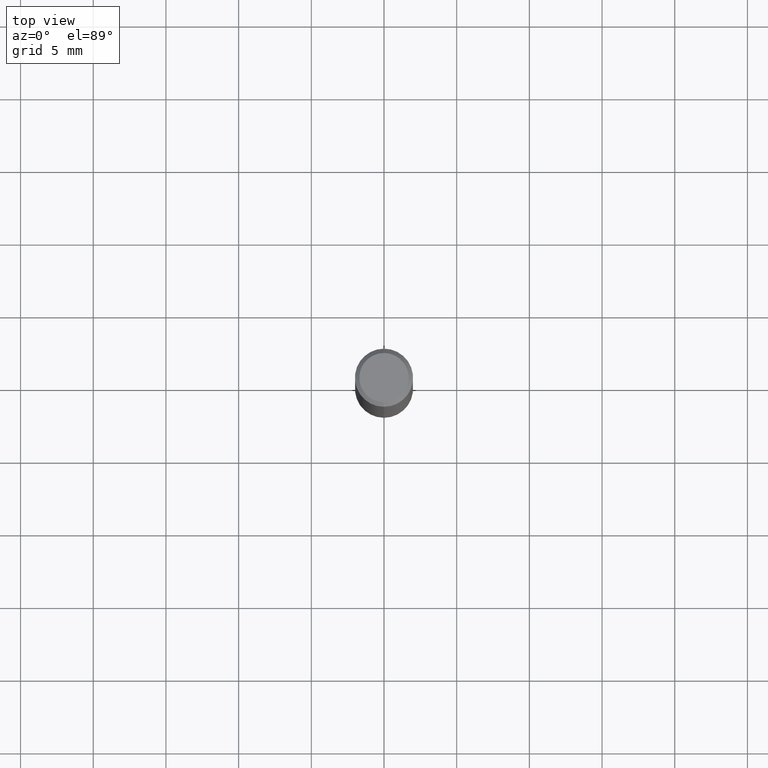
[diagram: clean part render]
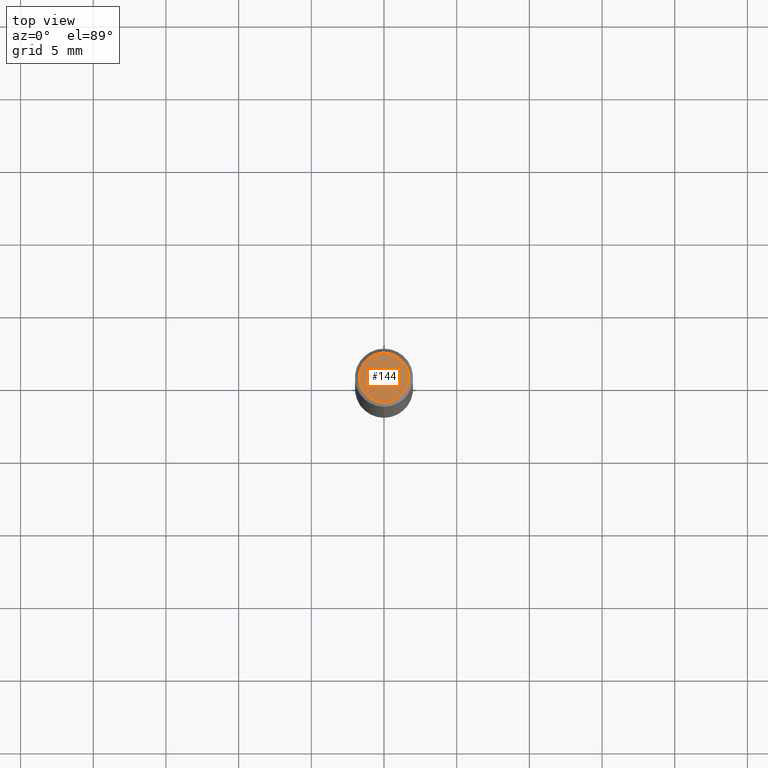
[diagram: same view with one face highlighted and labeled with its STEP entity id]
A machine part, top view. The second image highlights one B-rep face of the part: STEP entity #144.
In plain terms, the highlighted planar face has unit normal (-0, 0, 1).
Its self-contained STEP definition (entity closure, byte-faithful):
#98=EDGE_CURVE('',#148,#176,#227,.T.);
#108=EDGE_CURVE('',#176,#148,#237,.T.);
#144=ADVANCED_FACE('',(#278),#279,.T.);
#148=VERTEX_POINT('',#283);
#176=VERTEX_POINT('',#315);
#227=CIRCLE('',#362,1.7);
#237=CIRCLE('',#376,1.7);
#278=FACE_OUTER_BOUND('',#429,.T.);
#279=PLANE('',#430);
#283=CARTESIAN_POINT('',(2.08183080149804E-016,-1.7,0.0));
#315=CARTESIAN_POINT('',(0.0,1.7,0.0));
#362=AXIS2_PLACEMENT_3D('',#520,#521,#522);
#376=AXIS2_PLACEMENT_3D('',#527,#528,#529);
#429=EDGE_LOOP('',(#587,#588));
#430=AXIS2_PLACEMENT_3D('',#589,#590,#591);
#520=CARTESIAN_POINT('',(0.0,0.0,0.0));
#521=DIRECTION('',(0.0,0.0,-1.0));
#522=DIRECTION('',(0.0,1.0,0.0));
#527=CARTESIAN_POINT('',(0.0,0.0,0.0));
#528=DIRECTION('',(0.0,0.0,-1.0));
#529=DIRECTION('',(0.0,1.0,0.0));
#587=ORIENTED_EDGE('',*,*,#108,.F.);
#588=ORIENTED_EDGE('',*,*,#98,.F.);
#589=CARTESIAN_POINT('',(0.0,0.85,0.0));
#590=DIRECTION('',(-0.0,0.0,1.0));
#591=DIRECTION('',(0.0,-1.0,0.0));